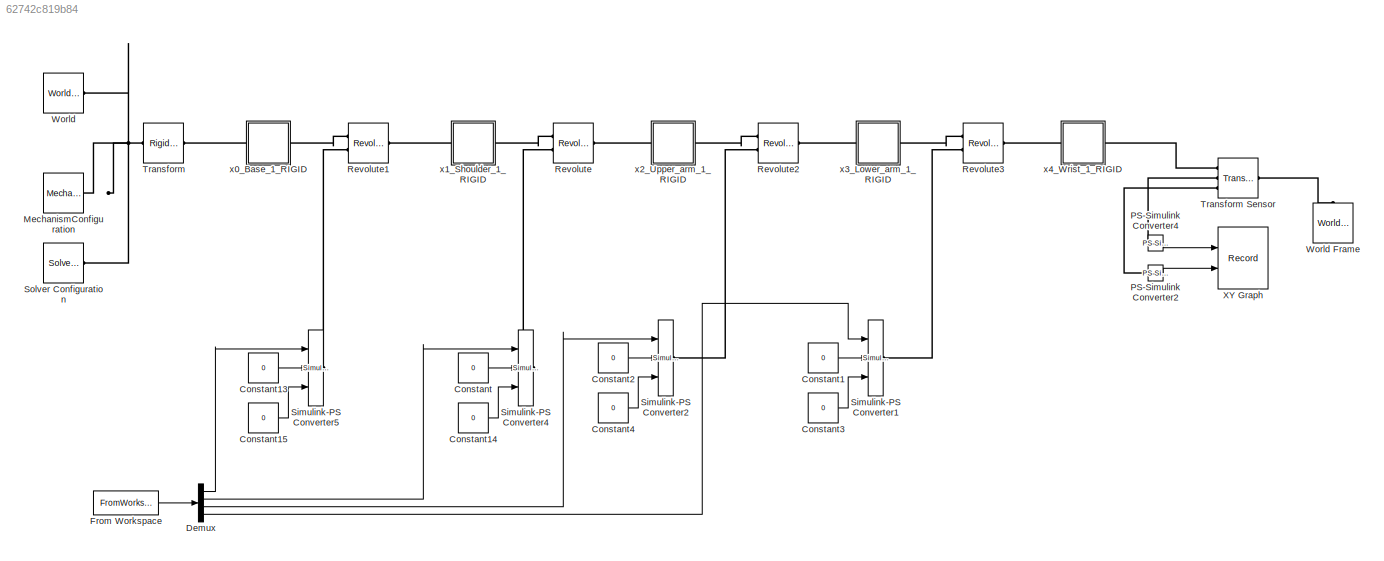
MODEL slx_62742c819b84
KIND model
CONFIG AbsTol = auto
CONFIG EnableMultiTasking = off
CONFIG FixedStep = auto
CONFIG MaxStep = auto
CONFIG MinStep = auto
CONFIG RelTol = 1e-3
CONFIG SampleTimeConstraint = Unconstrained
CONFIG SolverName = VariableStepAuto
CONFIG StartFcn = 1
CONFIG StartTime = 0.0
CONFIG StopTime = 10
WORKSPACE source: external: MATLAB File  (data not in archive)
BLOCK [Constant] Constant
  Value = 0
BLOCK [Constant] Constant1
  Value = 0
BLOCK [Constant] Constant13
  Value = 0
BLOCK [Constant] Constant14
  Value = 0
BLOCK [Constant] Constant15
  Value = 0
BLOCK [Constant] Constant2
  Value = 0
BLOCK [Constant] Constant3
  Value = 0
BLOCK [Constant] Constant4
  Value = 0
BLOCK [Demux] Demux
  Ports = [1, 4]
BLOCK [FromWorkspace] From Workspace
  VariableName = input
BLOCK [Reference] MechanismConfiguration  REF=sm_lib/Utilities/Mechanism
Configuration
  Ports = [0, 0, 0, 0, 0, 0, 1]
  SourceBlock = sm_lib/Utilities/Mechanism\nConfiguration
  SourceProductBaseCode = MS
  SourceType = Mechanism\nConfiguration
BLOCK [Reference] PS-Simulink Converter2  REF=nesl_utility/PS-Simulink
Converter
  Ports = [0, 1, 0, 0, 0, 1]
  SourceBlock = nesl_utility/PS-Simulink\nConverter
  SourceProductBaseCode = PW,SS
  SourceType = PS-Simulink\nConverter
BLOCK [Reference] PS-Simulink Converter4  REF=nesl_utility/PS-Simulink
Converter
  Ports = [0, 1, 0, 0, 0, 1]
  SourceBlock = nesl_utility/PS-Simulink\nConverter
  SourceProductBaseCode = PW,SS
  SourceType = PS-Simulink\nConverter
BLOCK [Reference] Revolute  REF=sm_lib/Joints/Revolute Joint
  Ports = [0, 0, 0, 0, 0, 2, 1]
  SourceBlock = sm_lib/Joints/Revolute Joint
  SourceProductBaseCode = MS
  SourceType = Revolute Joint
BLOCK [Reference] Revolute1  REF=sm_lib/Joints/Revolute Joint
  Ports = [0, 0, 0, 0, 0, 2, 1]
  SourceBlock = sm_lib/Joints/Revolute Joint
  SourceProductBaseCode = MS
  SourceType = Revolute Joint
BLOCK [Reference] Revolute2  REF=sm_lib/Joints/Revolute Joint
  Ports = [0, 0, 0, 0, 0, 2, 1]
  SourceBlock = sm_lib/Joints/Revolute Joint
  SourceProductBaseCode = MS
  SourceType = Revolute Joint
BLOCK [Reference] Revolute3  REF=sm_lib/Joints/Revolute Joint
  Ports = [0, 0, 0, 0, 0, 2, 1]
  SourceBlock = sm_lib/Joints/Revolute Joint
  SourceProductBaseCode = MS
  SourceType = Revolute Joint
BLOCK [Reference] Simulink-PS Converter1  REF=nesl_utility/Simulink-PS
Converter
  Ports = [3, 0, 0, 0, 0, 0, 1]
  SourceBlock = nesl_utility/Simulink-PS\nConverter
  SourceProductBaseCode = PW,SS
  SourceType = Simulink-PS\nConverter
BLOCK [Reference] Simulink-PS Converter2  REF=nesl_utility/Simulink-PS
Converter
  Ports = [3, 0, 0, 0, 0, 0, 1]
  SourceBlock = nesl_utility/Simulink-PS\nConverter
  SourceProductBaseCode = PW,SS
  SourceType = Simulink-PS\nConverter
BLOCK [Reference] Simulink-PS Converter4  REF=nesl_utility/Simulink-PS
Converter
  Ports = [3, 0, 0, 0, 0, 0, 1]
  SourceBlock = nesl_utility/Simulink-PS\nConverter
  SourceProductBaseCode = PW,SS
  SourceType = Simulink-PS\nConverter
BLOCK [Reference] Simulink-PS Converter5  REF=nesl_utility/Simulink-PS
Converter
  Ports = [3, 0, 0, 0, 0, 0, 1]
  SourceBlock = nesl_utility/Simulink-PS\nConverter
  SourceProductBaseCode = PW,SS
  SourceType = Simulink-PS\nConverter
BLOCK [Reference] Solver Configuration  REF=nesl_utility/Solver
Configuration
  Ports = [0, 0, 0, 0, 0, 0, 1]
  SourceBlock = nesl_utility/Solver\nConfiguration
  SourceProductBaseCode = PW,SS
  SourceType = Solver\nConfiguration
BLOCK [Reference] Transform  REF=sm_lib/Frames and
Transforms/Rigid
Transform
  Ports = [0, 0, 0, 0, 0, 1, 1]
  SourceBlock = sm_lib/Frames and\nTransforms/Rigid\nTransform
  SourceProductBaseCode = MS
  SourceType = Rigid\nTransform
BLOCK [Reference] Transform Sensor  REF=sm_lib/Frames and
Transforms/Transform
Sensor
  Ports = [0, 0, 0, 0, 0, 1, 3]
  SourceBlock = sm_lib/Frames and\nTransforms/Transform\nSensor
  SourceProductBaseCode = MS
  SourceType = Transform\nSensor
BLOCK [Reference] World  REF=sm_lib/Frames and
Transforms/World Frame
  Ports = [0, 0, 0, 0, 0, 0, 1]
  SourceBlock = sm_lib/Frames and\nTransforms/World Frame
  SourceProductBaseCode = MS
  SourceType = World Frame
BLOCK [Reference] World Frame  REF=sm_lib/Frames and
Transforms/World Frame
  NameLocation = right
  Ports = [0, 0, 0, 0, 0, 0, 1]
  SourceBlock = sm_lib/Frames and\nTransforms/World Frame
  SourceProductBaseCode = MS
  SourceType = World Frame
BLOCK [Record] XY Graph
  CompatibilityTag = XY
  FileSettingsInternal = {"entries":[{"content":{"excelSettings":{"content":{},"type":"Streamout.ExcelSettings"}},"type":"Streamout.FileSettingStorage","uuid":"10d556be-a2ec-492d-930b-781aa09cfbde"}],"packageUris":["http://schema.mathworks.com/mf0/streamout_blocks/R2020a"],"version":"1.0"}
  Layout = [1 1]
  Ports = [2]
  SignalsInternal = {"entries":[{"content":{"signals":[{"content":{"blockPath":["Copy_of_FANU_LR_MATE_100IB_ROBOT/XY Graph"],"channel":[],"dimensions":[1],"domain":"Copy_of_FANU_LR_MATE_100IB_ROBOT/XY Graph","lineColor":"#a2142f","plots":[1],"port":1,"sid":[""],"signalID":12768,"signalName":"PS-Simulink\nConverter4"},"type":"RecordBlkView.Signal","uuid":"566c8323-2458-44e4-a19c-b2ab913b1f71"},{"content":{"blockPath":...<+493ch>
  VisualizationBindings = {"xyplotplugin":{"info":[{"series":[{"bindingParametersList":[{"parameter":"X-Axis","signalID":12768,"signalName":"PS-Simulink\nConverter4"},{"parameter":"Y-Axis","signalID":12772,"signalName":"PS-Simulink\nConverter2"}],"seriesID":22201}],"subplotID":1}]}}
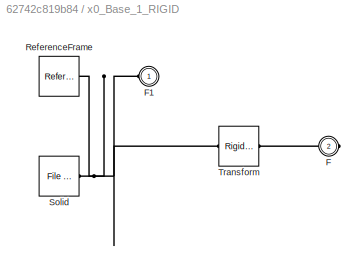
BLOCK [SubSystem] x0_Base_1_RIGID
  Ports = [0, 0, 0, 0, 0, 1, 1]
  RequestExecContextInheritance = off
BLOCK [PMIOPort] x0_Base_1_RIGID/F
  Port = 2
  Side = Right
BLOCK [PMIOPort] x0_Base_1_RIGID/F1
  Side = Left
BLOCK [Reference] x0_Base_1_RIGID/ReferenceFrame  REF=sm_lib/Frames and
Transforms/Reference
Frame
  Ports = [0, 0, 0, 0, 0, 0, 1]
  SourceBlock = sm_lib/Frames and\nTransforms/Reference\nFrame
  SourceProductBaseCode = MS
  SourceType = Reference\nFrame
BLOCK [Reference] x0_Base_1_RIGID/Solid  REF=sm_lib/Body Elements/File Solid
  Ports = [0, 0, 0, 0, 0, 0, 1]
  SourceBlock = sm_lib/Body Elements/File Solid
  SourceProductBaseCode = MS
  SourceType = File Solid
BLOCK [Reference] x0_Base_1_RIGID/Transform  REF=sm_lib/Frames and
Transforms/Rigid
Transform
  Ports = [0, 0, 0, 0, 0, 1, 1]
  SourceBlock = sm_lib/Frames and\nTransforms/Rigid\nTransform
  SourceProductBaseCode = MS
  SourceType = Rigid\nTransform
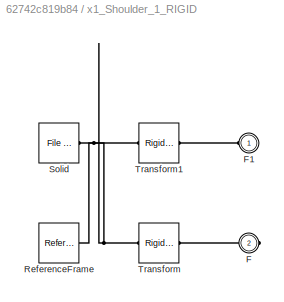
BLOCK [SubSystem] x1_Shoulder_1_RIGID
  Ports = [0, 0, 0, 0, 0, 1, 1]
  RequestExecContextInheritance = off
BLOCK [PMIOPort] x1_Shoulder_1_RIGID/F
  Port = 2
  Side = Right
BLOCK [PMIOPort] x1_Shoulder_1_RIGID/F1
  Side = Left
BLOCK [Reference] x1_Shoulder_1_RIGID/ReferenceFrame  REF=sm_lib/Frames and
Transforms/Reference
Frame
  Ports = [0, 0, 0, 0, 0, 0, 1]
  SourceBlock = sm_lib/Frames and\nTransforms/Reference\nFrame
  SourceProductBaseCode = MS
  SourceType = Reference\nFrame
BLOCK [Reference] x1_Shoulder_1_RIGID/Solid  REF=sm_lib/Body Elements/File Solid
  Ports = [0, 0, 0, 0, 0, 0, 1]
  SourceBlock = sm_lib/Body Elements/File Solid
  SourceProductBaseCode = MS
  SourceType = File Solid
BLOCK [Reference] x1_Shoulder_1_RIGID/Transform  REF=sm_lib/Frames and
Transforms/Rigid
Transform
  Ports = [0, 0, 0, 0, 0, 1, 1]
  SourceBlock = sm_lib/Frames and\nTransforms/Rigid\nTransform
  SourceProductBaseCode = MS
  SourceType = Rigid\nTransform
BLOCK [Reference] x1_Shoulder_1_RIGID/Transform1  REF=sm_lib/Frames and
Transforms/Rigid
Transform
  Ports = [0, 0, 0, 0, 0, 1, 1]
  SourceBlock = sm_lib/Frames and\nTransforms/Rigid\nTransform
  SourceProductBaseCode = MS
  SourceType = Rigid\nTransform
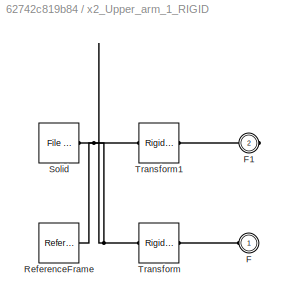
BLOCK [SubSystem] x2_Upper_arm_1_RIGID
  Ports = [0, 0, 0, 0, 0, 1, 1]
  RequestExecContextInheritance = off
BLOCK [PMIOPort] x2_Upper_arm_1_RIGID/F
  Side = Left
BLOCK [PMIOPort] x2_Upper_arm_1_RIGID/F1
  Port = 2
  Side = Right
BLOCK [Reference] x2_Upper_arm_1_RIGID/ReferenceFrame  REF=sm_lib/Frames and
Transforms/Reference
Frame
  Ports = [0, 0, 0, 0, 0, 0, 1]
  SourceBlock = sm_lib/Frames and\nTransforms/Reference\nFrame
  SourceProductBaseCode = MS
  SourceType = Reference\nFrame
BLOCK [Reference] x2_Upper_arm_1_RIGID/Solid  REF=sm_lib/Body Elements/File Solid
  Ports = [0, 0, 0, 0, 0, 0, 1]
  SourceBlock = sm_lib/Body Elements/File Solid
  SourceProductBaseCode = MS
  SourceType = File Solid
BLOCK [Reference] x2_Upper_arm_1_RIGID/Transform  REF=sm_lib/Frames and
Transforms/Rigid
Transform
  Ports = [0, 0, 0, 0, 0, 1, 1]
  SourceBlock = sm_lib/Frames and\nTransforms/Rigid\nTransform
  SourceProductBaseCode = MS
  SourceType = Rigid\nTransform
BLOCK [Reference] x2_Upper_arm_1_RIGID/Transform1  REF=sm_lib/Frames and
Transforms/Rigid
Transform
  Ports = [0, 0, 0, 0, 0, 1, 1]
  SourceBlock = sm_lib/Frames and\nTransforms/Rigid\nTransform
  SourceProductBaseCode = MS
  SourceType = Rigid\nTransform
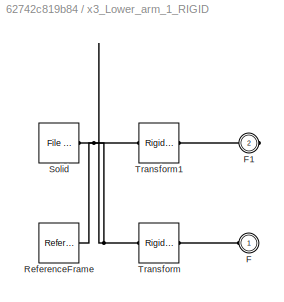
BLOCK [SubSystem] x3_Lower_arm_1_RIGID
  Ports = [0, 0, 0, 0, 0, 1, 1]
  RequestExecContextInheritance = off
BLOCK [PMIOPort] x3_Lower_arm_1_RIGID/F
  Side = Left
BLOCK [PMIOPort] x3_Lower_arm_1_RIGID/F1
  Port = 2
  Side = Right
BLOCK [Reference] x3_Lower_arm_1_RIGID/ReferenceFrame  REF=sm_lib/Frames and
Transforms/Reference
Frame
  Ports = [0, 0, 0, 0, 0, 0, 1]
  SourceBlock = sm_lib/Frames and\nTransforms/Reference\nFrame
  SourceProductBaseCode = MS
  SourceType = Reference\nFrame
BLOCK [Reference] x3_Lower_arm_1_RIGID/Solid  REF=sm_lib/Body Elements/File Solid
  Ports = [0, 0, 0, 0, 0, 0, 1]
  SourceBlock = sm_lib/Body Elements/File Solid
  SourceProductBaseCode = MS
  SourceType = File Solid
BLOCK [Reference] x3_Lower_arm_1_RIGID/Transform  REF=sm_lib/Frames and
Transforms/Rigid
Transform
  Ports = [0, 0, 0, 0, 0, 1, 1]
  SourceBlock = sm_lib/Frames and\nTransforms/Rigid\nTransform
  SourceProductBaseCode = MS
  SourceType = Rigid\nTransform
BLOCK [Reference] x3_Lower_arm_1_RIGID/Transform1  REF=sm_lib/Frames and
Transforms/Rigid
Transform
  Ports = [0, 0, 0, 0, 0, 1, 1]
  SourceBlock = sm_lib/Frames and\nTransforms/Rigid\nTransform
  SourceProductBaseCode = MS
  SourceType = Rigid\nTransform
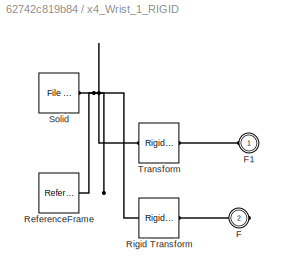
BLOCK [SubSystem] x4_Wrist_1_RIGID
  Ports = [0, 0, 0, 0, 0, 1, 1]
  RequestExecContextInheritance = off
BLOCK [PMIOPort] x4_Wrist_1_RIGID/F
  Port = 2
  Side = Right
BLOCK [PMIOPort] x4_Wrist_1_RIGID/F1
  Side = Left
BLOCK [Reference] x4_Wrist_1_RIGID/ReferenceFrame  REF=sm_lib/Frames and
Transforms/Reference
Frame
  Ports = [0, 0, 0, 0, 0, 0, 1]
  SourceBlock = sm_lib/Frames and\nTransforms/Reference\nFrame
  SourceProductBaseCode = MS
  SourceType = Reference\nFrame
BLOCK [Reference] x4_Wrist_1_RIGID/Rigid Transform  REF=sm_lib/Frames and
Transforms/Rigid
Transform
  Ports = [0, 0, 0, 0, 0, 1, 1]
  SourceBlock = sm_lib/Frames and\nTransforms/Rigid\nTransform
  SourceProductBaseCode = MS
  SourceType = Rigid\nTransform
BLOCK [Reference] x4_Wrist_1_RIGID/Solid  REF=sm_lib/Body Elements/File Solid
  Ports = [0, 0, 0, 0, 0, 0, 1]
  SourceBlock = sm_lib/Body Elements/File Solid
  SourceProductBaseCode = MS
  SourceType = File Solid
BLOCK [Reference] x4_Wrist_1_RIGID/Transform  REF=sm_lib/Frames and
Transforms/Rigid
Transform
  Ports = [0, 0, 0, 0, 0, 1, 1]
  SourceBlock = sm_lib/Frames and\nTransforms/Rigid\nTransform
  SourceProductBaseCode = MS
  SourceType = Rigid\nTransform
LINE Constant13:1 -> Simulink-PS Converter5:2
LINE Constant14:1 -> Simulink-PS Converter4:3
LINE Constant15:1 -> Simulink-PS Converter5:3
LINE Constant1:1 -> Simulink-PS Converter1:2
LINE Constant2:1 -> Simulink-PS Converter2:2
LINE Constant3:1 -> Simulink-PS Converter1:3
LINE Constant4:1 -> Simulink-PS Converter2:3
LINE Constant:1 -> Simulink-PS Converter4:2
LINE Demux:1 -> Simulink-PS Converter5:1
LINE Demux:2 -> Simulink-PS Converter4:1
LINE Demux:3 -> Simulink-PS Converter2:1
LINE Demux:4 -> Simulink-PS Converter1:1
LINE From Workspace:1 -> Demux:1
LINE PS-Simulink Converter2:1 -> XY Graph:2
LINE PS-Simulink Converter4:1 -> XY Graph:1
PNET net1: MechanismConfiguration:RConn1 -- Solver Configuration:RConn1 -- Transform:LConn1 -- World:RConn1
PLINE PS-Simulink Converter2:LConn1 -- Transform Sensor:RConn3
PLINE PS-Simulink Converter4:LConn1 -- Transform Sensor:RConn2
PLINE Revolute1:LConn1 -- x0_Base_1_RIGID:RConn1
PLINE Revolute1:LConn2 -- Simulink-PS Converter5:RConn1
PLINE Revolute1:RConn1 -- x1_Shoulder_1_RIGID:LConn1
PLINE Revolute2:LConn1 -- x2_Upper_arm_1_RIGID:RConn1
PLINE Revolute2:LConn2 -- Simulink-PS Converter2:RConn1
PLINE Revolute2:RConn1 -- x3_Lower_arm_1_RIGID:LConn1
PLINE Revolute3:LConn1 -- x3_Lower_arm_1_RIGID:RConn1
PLINE Revolute3:LConn2 -- Simulink-PS Converter1:RConn1
PLINE Revolute3:RConn1 -- x4_Wrist_1_RIGID:LConn1
PLINE Revolute:LConn1 -- x1_Shoulder_1_RIGID:RConn1
PLINE Revolute:LConn2 -- Simulink-PS Converter4:RConn1
PLINE Revolute:RConn1 -- x2_Upper_arm_1_RIGID:LConn1
PLINE Transform Sensor:LConn1 -- World Frame:RConn1
PLINE Transform Sensor:RConn1 -- x4_Wrist_1_RIGID:RConn1
PLINE Transform:RConn1 -- x0_Base_1_RIGID:LConn1
PNET net2: x0_Base_1_RIGID/F1:RConn1 -- x0_Base_1_RIGID/ReferenceFrame:RConn1 -- x0_Base_1_RIGID/Solid:RConn1 -- x0_Base_1_RIGID/Transform:LConn1
PLINE x0_Base_1_RIGID/F:RConn1 -- x0_Base_1_RIGID/Transform:RConn1
PLINE x1_Shoulder_1_RIGID/F1:RConn1 -- x1_Shoulder_1_RIGID/Transform1:RConn1
PLINE x1_Shoulder_1_RIGID/F:RConn1 -- x1_Shoulder_1_RIGID/Transform:RConn1
PNET net3: x1_Shoulder_1_RIGID/ReferenceFrame:RConn1 -- x1_Shoulder_1_RIGID/Solid:RConn1 -- x1_Shoulder_1_RIGID/Transform1:LConn1 -- x1_Shoulder_1_RIGID/Transform:LConn1
PLINE x2_Upper_arm_1_RIGID/F1:RConn1 -- x2_Upper_arm_1_RIGID/Transform1:RConn1
PLINE x2_Upper_arm_1_RIGID/F:RConn1 -- x2_Upper_arm_1_RIGID/Transform:RConn1
PNET net4: x2_Upper_arm_1_RIGID/ReferenceFrame:RConn1 -- x2_Upper_arm_1_RIGID/Solid:RConn1 -- x2_Upper_arm_1_RIGID/Transform1:LConn1 -- x2_Upper_arm_1_RIGID/Transform:LConn1
PLINE x3_Lower_arm_1_RIGID/F1:RConn1 -- x3_Lower_arm_1_RIGID/Transform1:RConn1
PLINE x3_Lower_arm_1_RIGID/F:RConn1 -- x3_Lower_arm_1_RIGID/Transform:RConn1
PNET net5: x3_Lower_arm_1_RIGID/ReferenceFrame:RConn1 -- x3_Lower_arm_1_RIGID/Solid:RConn1 -- x3_Lower_arm_1_RIGID/Transform1:LConn1 -- x3_Lower_arm_1_RIGID/Transform:LConn1
PLINE x4_Wrist_1_RIGID/F1:RConn1 -- x4_Wrist_1_RIGID/Transform:RConn1
PLINE x4_Wrist_1_RIGID/F:RConn1 -- x4_Wrist_1_RIGID/Rigid Transform:RConn1
PNET net6: x4_Wrist_1_RIGID/ReferenceFrame:RConn1 -- x4_Wrist_1_RIGID/Rigid Transform:LConn1 -- x4_Wrist_1_RIGID/Solid:RConn1 -- x4_Wrist_1_RIGID/Transform:LConn1
note: PNET lines group multi-terminal physical nets as a canonical sorted terminal list (undirected conserving connections); 2-terminal nets keep the pairwise PLINE form
